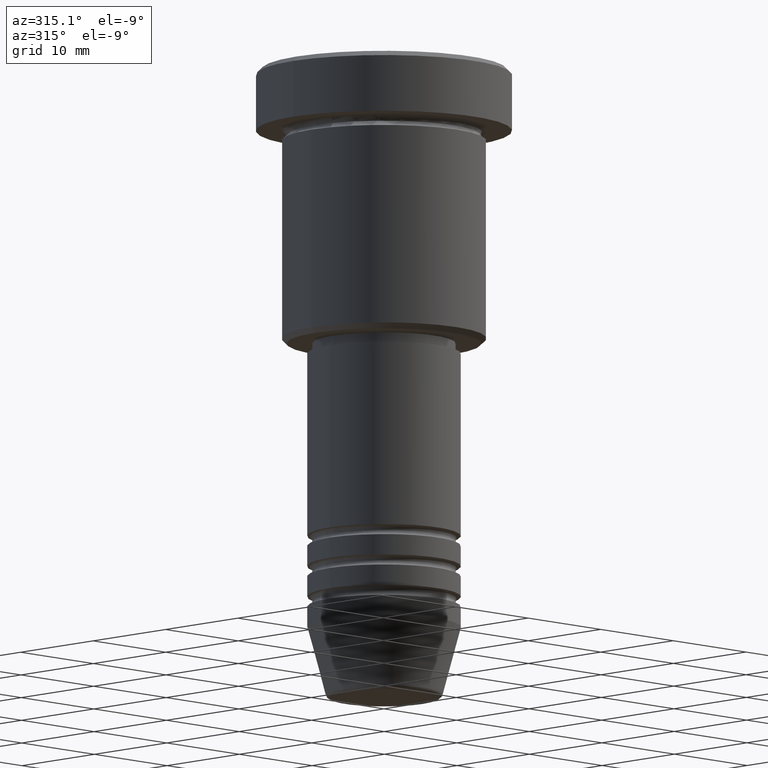
[diagram: clean part render]
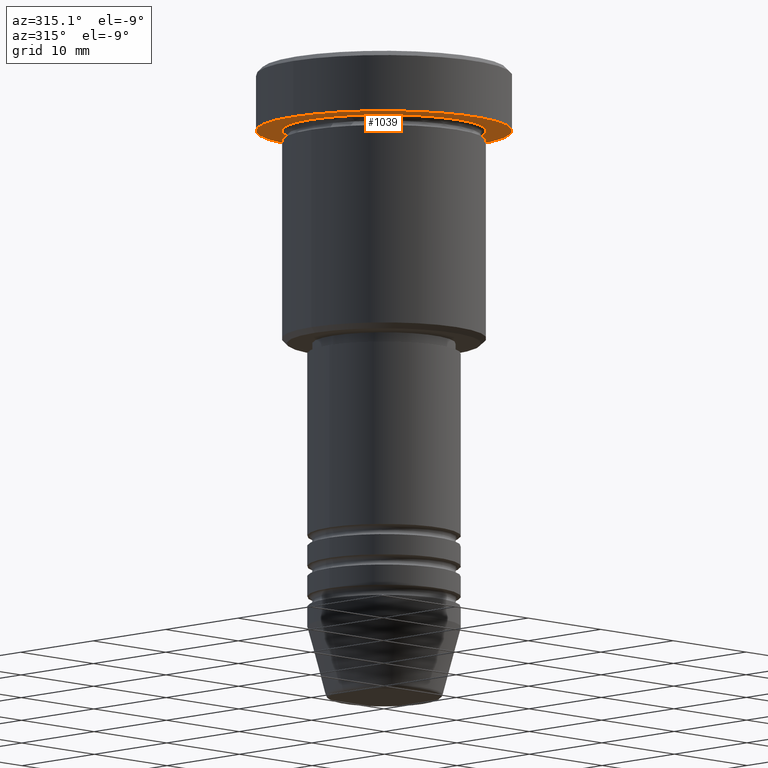
[diagram: same view with one face highlighted and labeled with its STEP entity id]
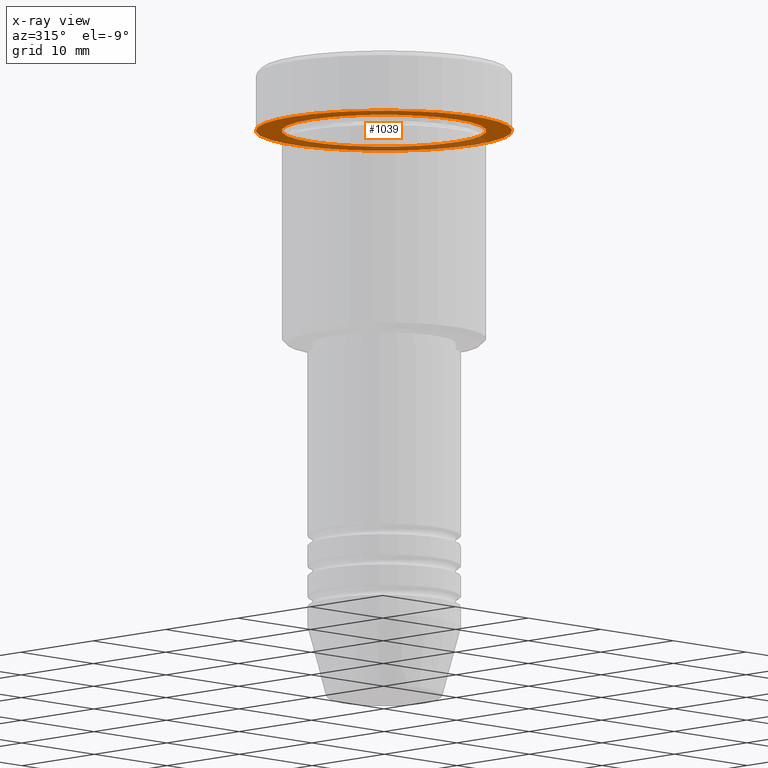
[diagram: x-ray of the same camera — body ghosted, the highlighted face saturated]
A machine part, auxiliary view. The second image highlights one B-rep face of the part: STEP entity #1039.
The next image is the same camera in x-ray: the body ghosted, the highlighted face saturated — about 34% of this face is hidden behind the body in this view.
In plain terms, the highlighted planar face has unit normal (0, 0, -1).
Its self-contained STEP definition (entity closure, byte-faithful):
#11 = EDGE_LOOP ( 'NONE', ( #175, #519 ) ) ;
#51 = EDGE_CURVE ( 'NONE', #783, #952, #653, .T. ) ;
#79 = EDGE_CURVE ( 'NONE', #181, #548, #1014, .T. ) ;
#90 = ORIENTED_EDGE ( 'NONE', *, *, #1089, .T. ) ;
#96 = CARTESIAN_POINT ( 'NONE',  ( 0.000000000000000000, 0.000000000000000000, -5.999999999999996447 ) ) ;
#119 = AXIS2_PLACEMENT_3D ( 'NONE', #96, #1180, #1097 ) ;
#133 = EDGE_LOOP ( 'NONE', ( #466, #90 ) ) ;
#175 = ORIENTED_EDGE ( 'NONE', *, *, #699, .F. ) ;
#181 = VERTEX_POINT ( 'NONE', #442 ) ;
#194 = DIRECTION ( 'NONE',  ( 1.000000000000000000, 0.000000000000000000, 0.000000000000000000 ) ) ;
#244 = CARTESIAN_POINT ( 'NONE',  ( 10.00000000000000000, 1.224646799147353256E-15, -5.999999999999996447 ) ) ;
#275 = AXIS2_PLACEMENT_3D ( 'NONE', #810, #457, #194 ) ;
#300 = DIRECTION ( 'NONE',  ( -1.000000000000000000, 0.000000000000000000, 0.000000000000000000 ) ) ;
#329 = CARTESIAN_POINT ( 'NONE',  ( 0.000000000000000000, 12.50000000000000000, -5.999999999999996447 ) ) ;
#367 = AXIS2_PLACEMENT_3D ( 'NONE', #329, #787, #605 ) ;
#395 = AXIS2_PLACEMENT_3D ( 'NONE', #475, #843, #300 ) ;
#409 = CARTESIAN_POINT ( 'NONE',  ( 12.50000000000000000, 0.000000000000000000, -5.999999999999996447 ) ) ;
#442 = CARTESIAN_POINT ( 'NONE',  ( -10.00000000000000000, 0.000000000000000000, -5.999999999999996447 ) ) ;
#457 = DIRECTION ( 'NONE',  ( -0.000000000000000000, -0.000000000000000000, 1.000000000000000000 ) ) ;
#466 = ORIENTED_EDGE ( 'NONE', *, *, #79, .T. ) ;
#475 = CARTESIAN_POINT ( 'NONE',  ( 0.000000000000000000, 0.000000000000000000, -5.999999999999996447 ) ) ;
#513 = PLANE ( 'NONE',  #367 ) ;
#519 = ORIENTED_EDGE ( 'NONE', *, *, #51, .F. ) ;
#548 = VERTEX_POINT ( 'NONE', #244 ) ;
#551 = DIRECTION ( 'NONE',  ( -0.000000000000000000, -0.000000000000000000, 1.000000000000000000 ) ) ;
#582 = CIRCLE ( 'NONE', #275, 12.50000000000000000 ) ;
#585 = FACE_OUTER_BOUND ( 'NONE', #11, .T. ) ;
#605 = DIRECTION ( 'NONE',  ( -1.000000000000000000, 0.000000000000000000, -0.000000000000000000 ) ) ;
#653 = CIRCLE ( 'NONE', #753, 12.50000000000000000 ) ;
#699 = EDGE_CURVE ( 'NONE', #952, #783, #582, .T. ) ;
#753 = AXIS2_PLACEMENT_3D ( 'NONE', #1028, #551, #1126 ) ;
#781 = FACE_BOUND ( 'NONE', #133, .T. ) ;
#783 = VERTEX_POINT ( 'NONE', #938 ) ;
#787 = DIRECTION ( 'NONE',  ( 0.000000000000000000, 0.000000000000000000, -1.000000000000000000 ) ) ;
#810 = CARTESIAN_POINT ( 'NONE',  ( 0.000000000000000000, 0.000000000000000000, -5.999999999999996447 ) ) ;
#821 = CIRCLE ( 'NONE', #119, 10.00000000000000000 ) ;
#843 = DIRECTION ( 'NONE',  ( -0.000000000000000000, -0.000000000000000000, 1.000000000000000000 ) ) ;
#938 = CARTESIAN_POINT ( 'NONE',  ( -12.50000000000000000, 1.530808498934191521E-15, -5.999999999999996447 ) ) ;
#952 = VERTEX_POINT ( 'NONE', #409 ) ;
#1014 = CIRCLE ( 'NONE', #395, 10.00000000000000000 ) ;
#1028 = CARTESIAN_POINT ( 'NONE',  ( 0.000000000000000000, 0.000000000000000000, -5.999999999999996447 ) ) ;
#1039 = ADVANCED_FACE ( 'NONE', ( #781, #585 ), #513, .T. ) ;
#1089 = EDGE_CURVE ( 'NONE', #548, #181, #821, .T. ) ;
#1097 = DIRECTION ( 'NONE',  ( -1.000000000000000000, 0.000000000000000000, 0.000000000000000000 ) ) ;
#1126 = DIRECTION ( 'NONE',  ( 1.000000000000000000, 0.000000000000000000, 0.000000000000000000 ) ) ;
#1180 = DIRECTION ( 'NONE',  ( -0.000000000000000000, -0.000000000000000000, 1.000000000000000000 ) ) ;